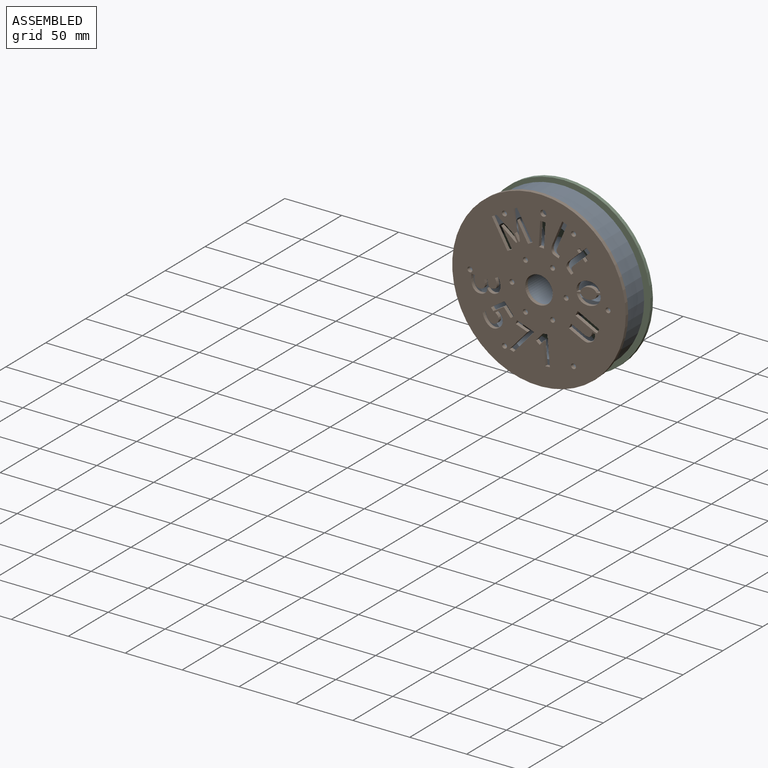
[diagram: assembled view]
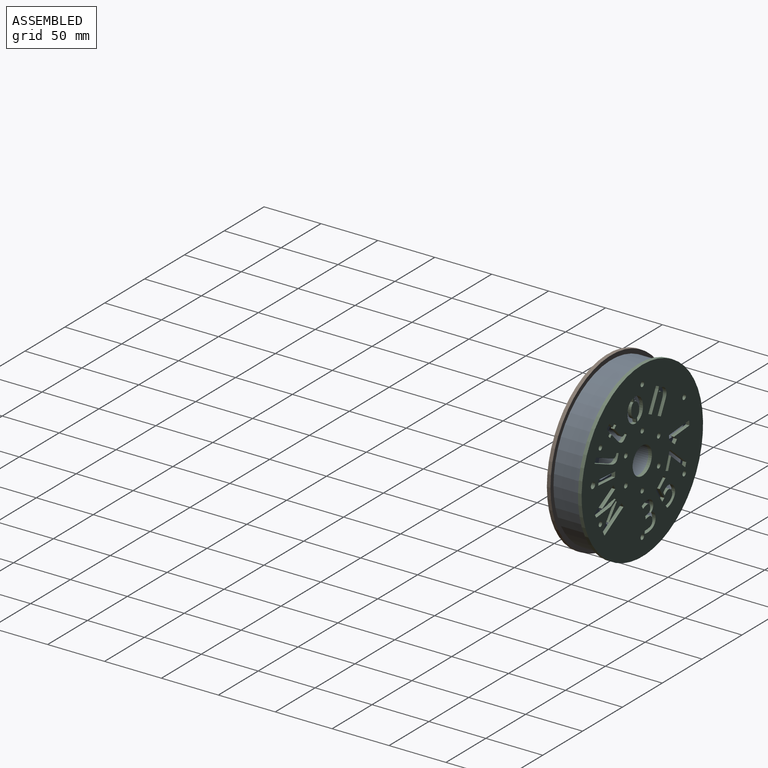
[diagram: assembled view, second angle]
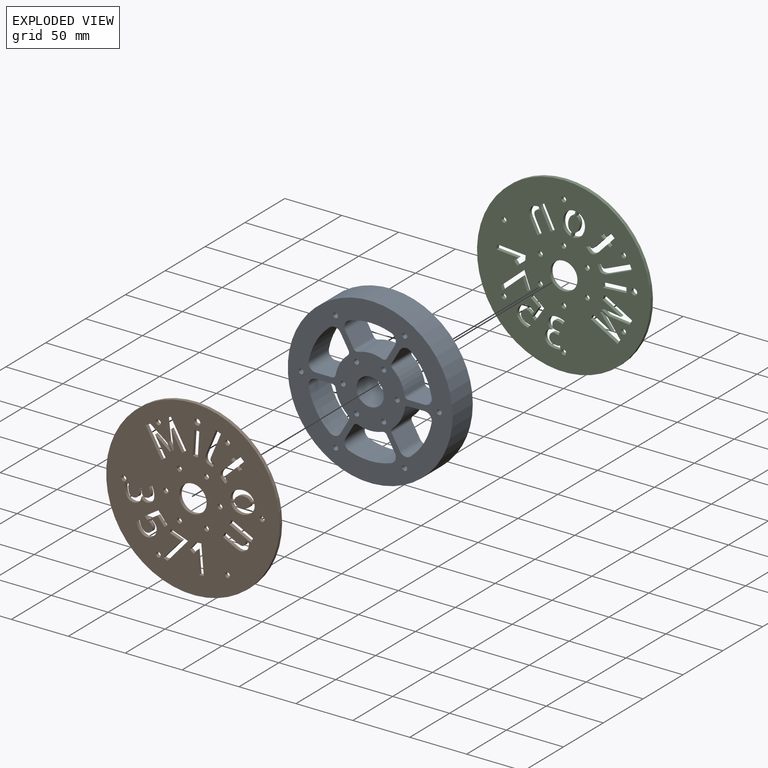
[diagram: exploded view]
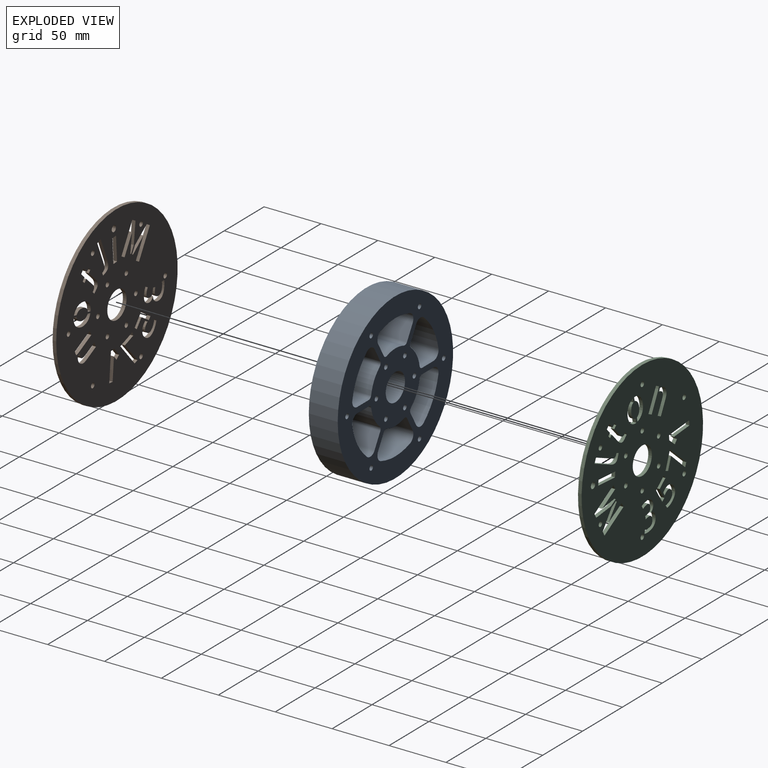
[diagram: exploded view, second angle]
ASSEMBLY  parts=3 mates=4
PART A: 76 faces, bbox 144.8x25.4x144.8 mm
  f0: cylinder r=32.14mm len=25.4mm, axis (0,1,0), area 278mm2, adj f1,f55,f74,f75
  f1: cylinder r=3.17mm len=25.4mm, axis (0,1,0), area 112.6mm2, adj f0,f2,f74,f75
  f2: plane 25.4x12.35mm, normal (0.87,0,-0.5), area 362.2mm2, adj f1,f3,f74,f75
  f3: cylinder r=6.35mm len=25.4mm, axis (0,1,0), area 284mm2, adj f2,f4,f74,f75
  f4: cylinder r=56.78mm len=25.4mm, axis (0,1,0), area 472.7mm2, adj f3,f5,f74,f75
  f5: cylinder r=56.78mm len=25.4mm, axis (0,1,0), area 472.7mm2, adj f4,f6,f74,f75
  f6: cylinder r=6.35mm len=25.4mm, axis (0,1,0), area 284mm2, adj f5,f7,f74,f75
  f7: plane 25.4x14.26mm, normal (0,0,1), area 362.2mm2, adj f6,f8,f74,f75
  f8: cylinder r=3.17mm len=25.4mm, axis (0,1,0), area 112.6mm2, adj f7,f55,f74,f75
  f9: cylinder r=32.14mm len=25.4mm, axis (0,1,0), area 278mm2, adj f10,f56,f74,f75
  f10: cylinder r=3.17mm len=25.4mm, axis (0,1,0), area 112.6mm2, adj f9,f11,f74,f75
  f11: plane 25.4x14.26mm, normal (0,0,-1), area 362.2mm2, adj f10,f12,f74,f75
  f12: cylinder r=6.35mm len=25.4mm, axis (0,1,0), area 284mm2, adj f11,f13,f74,f75
  f13: cylinder r=56.78mm len=25.4mm, axis (0,1,0), area 472.7mm2, adj f12,f14,f74,f75
  f14: cylinder r=56.78mm len=25.4mm, axis (0,1,0), area 472.7mm2, adj f13,f15,f74,f75
  f15: cylinder r=6.35mm len=25.4mm, axis (0,1,0), area 284mm2, adj f14,f16,f74,f75
  f16: plane 25.4x12.35mm, normal (0.87,0,0.5), area 362.2mm2, adj f15,f17,f74,f75
  f17: cylinder r=3.17mm len=25.4mm, axis (0,1,0), area 112.6mm2, adj f16,f56,f74,f75
  f18: cylinder r=32.14mm len=25.4mm, axis (0,1,0), area 278mm2, adj f19,f57,f74,f75
  f19: cylinder r=3.17mm len=25.4mm, axis (0,1,0), area 112.6mm2, adj f18,f20,f74,f75
  f20: plane 25.4x12.35mm, normal (-0.87,0,-0.5), area 362.2mm2, adj f19,f21,f74,f75
  f21: cylinder r=6.35mm len=25.4mm, axis (0,1,0), area 284mm2, adj f20,f22,f74,f75
  f22: cylinder r=56.78mm len=25.4mm, axis (0,1,0), area 472.7mm2, adj f21,f23,f74,f75
  f23: cylinder r=56.78mm len=25.4mm, axis (0,1,0), area 472.7mm2, adj f22,f24,f74,f75
  f24: cylinder r=6.35mm len=25.4mm, axis (0,1,0), area 284mm2, adj f23,f25,f74,f75
  f25: plane 25.4x12.35mm, normal (0.87,0,-0.5), area 362.2mm2, adj f24,f26,f74,f75
  f26: cylinder r=3.17mm len=25.4mm, axis (0,1,0), area 112.6mm2, adj f25,f57,f74,f75
  f27: cylinder r=32.14mm len=25.4mm, axis (0,1,0), area 278mm2, adj f28,f58,f74,f75
  f28: cylinder r=3.17mm len=25.4mm, axis (0,1,0), area 112.6mm2, adj f27,f29,f74,f75
  f29: plane 25.4x12.35mm, normal (-0.87,0,0.5), area 362.2mm2, adj f28,f30,f74,f75
  f30: cylinder r=6.35mm len=25.4mm, axis (0,1,0), area 284mm2, adj f29,f31,f74,f75
  f31: cylinder r=56.78mm len=25.4mm, axis (0,1,0), area 472.7mm2, adj f30,f32,f74,f75
  f32: cylinder r=56.78mm len=25.4mm, axis (0,1,0), area 472.7mm2, adj f31,f33,f74,f75
  f33: cylinder r=6.35mm len=25.4mm, axis (0,1,0), area 284mm2, adj f32,f34,f74,f75
  f34: plane 25.4x14.26mm, normal (0,0,-1), area 362.2mm2, adj f33,f35,f74,f75
  f35: cylinder r=3.17mm len=25.4mm, axis (0,1,0), area 112.6mm2, adj f34,f58,f74,f75
  f36: cylinder r=32.14mm len=25.4mm, axis (0,1,0), area 278mm2, adj f37,f59,f74,f75
  f37: cylinder r=3.17mm len=25.4mm, axis (0,1,0), area 112.6mm2, adj f36,f38,f74,f75
  f38: plane 25.4x14.26mm, normal (0,0,1), area 362.2mm2, adj f37,f39,f74,f75
  f39: cylinder r=6.35mm len=25.4mm, axis (0,1,0), area 284mm2, adj f38,f40,f74,f75
  f40: cylinder r=56.78mm len=25.4mm, axis (0,1,0), area 472.7mm2, adj f39,f41,f74,f75
  f41: cylinder r=56.78mm len=25.4mm, axis (0,1,0), area 472.7mm2, adj f40,f42,f74,f75
  f42: cylinder r=6.35mm len=25.4mm, axis (0,1,0), area 284mm2, adj f41,f43,f74,f75
  f43: plane 25.4x12.35mm, normal (-0.87,0,-0.5), area 362.2mm2, adj f42,f44,f74,f75
  f44: cylinder r=3.17mm len=25.4mm, axis (0,1,0), area 112.6mm2, adj f43,f59,f74,f75
  f45: cylinder r=6.35mm len=25.4mm, axis (0,1,0), area 284mm2, adj f46,f60,f74,f75
  f46: cylinder r=56.78mm len=25.4mm, axis (0,1,0), area 472.7mm2, adj f45,f47,f74,f75
  f47: cylinder r=56.78mm len=25.4mm, axis (0,1,0), area 472.7mm2, adj f46,f48,f74,f75
  f48: cylinder r=6.35mm len=25.4mm, axis (0,1,0), area 284mm2, adj f47,f49,f74,f75
  f49: plane 25.4x12.35mm, normal (-0.87,0,0.5), area 362.2mm2, adj f48,f50,f74,f75
  f50: cylinder r=3.17mm len=25.4mm, axis (0,1,0), area 112.6mm2, adj f49,f51,f74,f75
  f51: cylinder r=32.14mm len=25.4mm, axis (0,1,0), area 278mm2, adj f50,f52,f74,f75
  f52: cylinder r=32.14mm len=25.4mm, axis (0,1,0), area 278mm2, adj f51,f53,f74,f75
  f53: cylinder r=3.17mm len=25.4mm, axis (0,1,0), area 112.6mm2, adj f52,f60,f74,f75
  f54: cylinder r=12.06mm len=25.4mm, axis (0,1,0), area 1925.5mm2, adj f74,f75
  f55: cylinder r=32.14mm len=25.4mm, axis (0,1,0), area 278mm2, adj f0,f8,f74,f75
  f56: cylinder r=32.14mm len=25.4mm, axis (0,1,0), area 278mm2, adj f9,f17,f74,f75
  f57: cylinder r=32.14mm len=25.4mm, axis (0,1,0), area 278mm2, adj f18,f26,f74,f75
  f58: cylinder r=32.14mm len=25.4mm, axis (0,1,0), area 278mm2, adj f27,f35,f74,f75
  f59: cylinder r=32.14mm len=25.4mm, axis (0,1,0), area 278mm2, adj f36,f44,f74,f75
  f60: plane 25.4x12.35mm, normal (0.87,0,0.5), area 362.2mm2, adj f45,f53,f74,f75
  f61: cylinder r=2.16mm len=25.4mm, axis (0,1,0), area 344.6mm2, adj f74,f75
  f62: cylinder r=2.16mm len=25.4mm, axis (0,1,0), area 344.6mm2, adj f74,f75
  f63: cylinder r=2.16mm len=25.4mm, axis (0,1,0), area 344.6mm2, adj f74,f75
  f64: cylinder r=2.16mm len=25.4mm, axis (0,1,0), area 344.6mm2, adj f74,f75
  f65: cylinder r=2.16mm len=25.4mm, axis (0,1,0), area 344.6mm2, adj f74,f75
  f66: cylinder r=2.16mm len=25.4mm, axis (0,1,0), area 344.6mm2, adj f74,f75
  f67: cylinder r=2.16mm len=25.4mm, axis (0,1,0), area 344.6mm2, adj f74,f75
  f68: cylinder r=2.16mm len=25.4mm, axis (0,1,0), area 344.6mm2, adj f74,f75
  f69: cylinder r=2.16mm len=25.4mm, axis (0,1,0), area 344.6mm2, adj f74,f75
  f70: cylinder r=2.16mm len=25.4mm, axis (0,1,0), area 344.6mm2, adj f74,f75
  f71: cylinder r=2.16mm len=25.4mm, axis (0,1,0), area 344.6mm2, adj f74,f75
  f72: cylinder r=2.16mm len=25.4mm, axis (0,1,0), area 344.6mm2, adj f74,f75
  f73: cylinder r=72.39mm len=144.78mm, axis (0,1,0), area 11552.9mm2, adj f74,f75
  f74: plane 144.78x144.78mm, normal (0,-1,0), area 10230.7mm2, adj f0,f1,f2,f3,f4,f5,f6,f7
  f75: plane 144.78x144.78mm, normal (0,1,0), area 10230.7mm2, adj f0,f1,f2,f3,f4,f5,f6,f7
PART B: 240 faces, bbox 152.4x3.2x152.4 mm
  f0: plane 152.4x152.4mm, normal (0,1,0), area 15791.8mm2, adj f2,f3,f4,f5,f6,f7,f8,f9
  f1: plane 152.4x152.4mm, normal (0,-1,0), area 15791.8mm2, adj f2,f3,f4,f5,f6,f7,f8,f9
  f2: cylinder r=2.16mm len=4.32mm, axis (0,-1,0), area 43.1mm2, adj f0,f1
  f3: cylinder r=2.16mm len=4.32mm, axis (0,-1,0), area 43.1mm2, adj f0,f1
  f4: cylinder r=76.2mm len=152.4mm, axis (0,-1,0), area 1520.1mm2, adj f0,f1
  f5: cylinder r=12.06mm len=24.13mm, axis (0,-1,0), area 240.7mm2, adj f0,f1
  f6: cylinder r=2.16mm len=4.32mm, axis (0,-1,0), area 43.1mm2, adj f0,f1
  f7: cylinder r=2.16mm len=4.32mm, axis (0,-1,0), area 43.1mm2, adj f0,f1
  f8: cylinder r=2.16mm len=4.32mm, axis (0,-1,0), area 43.1mm2, adj f0,f1
  f9: cylinder r=2.16mm len=4.32mm, axis (0,-1,0), area 43.1mm2, adj f0,f1
  f10: cylinder r=2.16mm len=4.32mm, axis (0,-1,0), area 43.1mm2, adj f0,f1
  f11: cylinder r=2.16mm len=4.32mm, axis (0,-1,0), area 43.1mm2, adj f0,f1
  f12: cylinder r=2.16mm len=4.32mm, axis (0,-1,0), area 43.1mm2, adj f0,f1
  f13: cylinder r=2.16mm len=4.32mm, axis (0,-1,0), area 43.1mm2, adj f0,f1
  f14: cylinder r=2.16mm len=4.32mm, axis (0,-1,0), area 43.1mm2, adj f0,f1
  f15: cylinder r=2.16mm len=4.32mm, axis (0,-1,0), area 43.1mm2, adj f0,f1
  f16: plane 23.85x13.68mm, normal (0.87,0,0.5), area 87.3mm2, adj f0,f1,f17,f21
  f17: plane 3.95x3.18mm, normal (-0.5,0,0.87), area 14.5mm2, adj f0,f1,f16,f18
  f18: plane 16.41x9.41mm, normal (-0.87,0,-0.5), area 60.1mm2, adj f0,f1,f17,f19
  f19: plane 12.98x10.19mm, normal (0.62,0,0.79), area 52.4mm2, adj f0,f1,f18,f20
  f20: plane 3.18x1.04mm, normal (-0.5,0,0.87), area 3.8mm2, adj f0,f1,f19,f22
  f21: plane 3.95x3.18mm, normal (0.5,0,-0.87), area 14.5mm2, adj f0,f1,f16,f23
  f22: plane 5.99x3.44mm, normal (-0.87,0,-0.5), area 21.9mm2, adj f0,f1,f20,f23
  f23: plane 14.85x11.05mm, normal (-0.6,0,-0.8), area 58.8mm2, adj f0,f1,f21,f22
  f24: extruded ~3.18x1.95mm, area 6.7mm2, adj f0,f1,f25,f29
  f25: extruded ~3.18x1.85mm, area 6.7mm2, adj f0,f1,f24,f26
  f26: extruded ~3.18x1.91mm, area 6.6mm2, adj f0,f1,f25,f27
  f27: extruded ~3.18x1.85mm, area 6.7mm2, adj f0,f1,f26,f28
  f28: extruded ~3.18x1.91mm, area 6.6mm2, adj f0,f1,f27,f30
  f29: extruded ~3.18x1.83mm, area 6.7mm2, adj f0,f1,f24,f31
  f30: extruded ~3.18x1.83mm, area 6.7mm2, adj f0,f1,f28,f31
  f31: extruded ~3.18x1.95mm, area 6.7mm2, adj f0,f1,f29,f30
  f32: extruded ~3.18x1.22mm, area 4.6mm2, adj f0,f1,f33,f74
  f33: extruded ~3.18x1.3mm, area 5.4mm2, adj f0,f1,f32,f34
  f34: extruded ~3.18x1.68mm, area 5.8mm2, adj f0,f1,f33,f35
  f35: extruded ~3.18x1.98mm, area 6.3mm2, adj f0,f1,f34,f36
  f36: extruded ~3.18x3.01mm, area 10.4mm2, adj f0,f1,f35,f37
  f37: extruded ~3.18x2.08mm, area 9mm2, adj f0,f1,f36,f38
  f38: extruded ~3.18x2.71mm, area 9mm2, adj f0,f1,f37,f39
  f39: extruded ~3.18x3.09mm, area 9.8mm2, adj f0,f1,f38,f40
  f40: extruded ~3.43x3.18mm, area 11.3mm2, adj f0,f1,f39,f41
  f41: extruded ~3.18x1.93mm, area 6.7mm2, adj f0,f1,f40,f42
  f42: plane 3.18x2.85mm, normal (0.52,0,-0.86), area 10.6mm2, adj f0,f1,f41,f43
  f43: extruded ~3.18x1.33mm, area 4.8mm2, adj f0,f1,f42,f44
  f44: extruded ~3.18x2.44mm, area 8.1mm2, adj f0,f1,f43,f45
  f45: extruded ~3.18x2.51mm, area 8mm2, adj f0,f1,f44,f46
  f46: extruded ~3.18x1.5mm, area 5.3mm2, adj f0,f1,f45,f47
  f47: extruded ~3.18x1.15mm, area 4.5mm2, adj f0,f1,f46,f48
  f48: extruded ~3.18x1.27mm, area 4.2mm2, adj f0,f1,f47,f49
  f49: extruded ~3.18x2.42mm, area 7.8mm2, adj f0,f1,f48,f50
  f50: extruded ~3.18x1.35mm, area 5.3mm2, adj f0,f1,f49,f51
  f51: extruded ~3.18x1.38mm, area 4.8mm2, adj f0,f1,f50,f52
  f52: extruded ~3.18x1.5mm, area 4.9mm2, adj f0,f1,f51,f53
  f53: plane 3.18x2.31mm, normal (-0.98,0,-0.17), area 7.4mm2, adj f0,f1,f52,f54
  f54: plane 3.18x2.75mm, normal (0.19,0,-0.98), area 8.9mm2, adj f0,f1,f53,f55
  f55: plane 3.42x3.18mm, normal (0.98,0,0.17), area 11mm2, adj f0,f1,f54,f56
  f56: extruded ~3.31x3.18mm, area 11.1mm2, adj f0,f1,f55,f57
  f57: extruded ~3.18x2.9mm, area 10.7mm2, adj f0,f1,f56,f58
  f58: extruded ~3.41x3.18mm, area 11.2mm2, adj f0,f1,f57,f59
  f59: extruded ~3.27x3.18mm, area 12.4mm2, adj f0,f1,f58,f60
  f60: extruded ~3.18x2.53mm, area 8.1mm2, adj f0,f1,f59,f61
  f61: extruded ~3.18x1.48mm, area 4.7mm2, adj f0,f1,f60,f62
  f62: extruded ~3.18x0.85mm, area 2.8mm2, adj f0,f1,f61,f63
  f63: extruded ~3.18x0.65mm, area 2.2mm2, adj f0,f1,f62,f64
  f64: plane 3.18x3.08mm, normal (-0.13,0,-0.99), area 9.8mm2, adj f0,f1,f63,f65
  f65: extruded ~3.18x2.43mm, area 7.8mm2, adj f0,f1,f64,f66
  f66: extruded ~4.57x3.18mm, area 14.6mm2, adj f0,f1,f65,f67
  f67: extruded ~3.18x1.12mm, area 3.7mm2, adj f0,f1,f66,f68
  f68: extruded ~3.18x1.56mm, area 5.3mm2, adj f0,f1,f67,f69
  f69: extruded ~3.18x1.69mm, area 6.3mm2, adj f0,f1,f68,f70
  f70: extruded ~3.18x1.61mm, area 6.9mm2, adj f0,f1,f69,f71
  f71: extruded ~3.18x2.27mm, area 7.8mm2, adj f0,f1,f70,f72
  f72: extruded ~3.18x3.02mm, area 9.6mm2, adj f0,f1,f71,f73
  f73: extruded ~3.18x2.38mm, area 8.1mm2, adj f0,f1,f72,f75
  f74: extruded ~3.18x1.7mm, area 5.5mm2, adj f0,f1,f32,f76
  f75: extruded ~3.18x1.6mm, area 7mm2, adj f0,f1,f73,f76
  f76: extruded ~3.18x1.75mm, area 6.2mm2, adj f0,f1,f74,f75
  f77: extruded ~3.18x0.88mm, area 3.8mm2, adj f0,f1,f78,f100
  f78: extruded ~3.18x1.08mm, area 4.7mm2, adj f0,f1,f77,f79
  f79: plane 3.18x2.89mm, normal (0.54,0,-0.84), area 10.9mm2, adj f0,f1,f78,f80
  f80: extruded ~3.18x0.99mm, area 4mm2, adj f0,f1,f79,f81
  f81: extruded ~3.18x0.95mm, area 4.2mm2, adj f0,f1,f80,f82
  f82: extruded ~3.25x3.18mm, area 11.3mm2, adj f0,f1,f81,f83
  f83: extruded ~3.18x2.95mm, area 11mm2, adj f0,f1,f82,f84
  f84: extruded ~4.02x3.18mm, area 14mm2, adj f0,f1,f83,f85
  f85: extruded ~3.57x3.18mm, area 13.7mm2, adj f0,f1,f84,f86
  f86: extruded ~3.18x1.44mm, area 5.5mm2, adj f0,f1,f85,f87
  f87: extruded ~3.18x1.68mm, area 5.8mm2, adj f0,f1,f86,f88
  f88: extruded ~3.18x1.65mm, area 5.4mm2, adj f0,f1,f87,f89
  f89: extruded ~3.18x1.37mm, area 4.4mm2, adj f0,f1,f88,f90
  f90: plane 3.18x2.65mm, normal (0.64,0,-0.77), area 10.9mm2, adj f0,f1,f89,f91
  f91: extruded ~3.18x1.06mm, area 3.5mm2, adj f0,f1,f90,f92
  f92: extruded ~3.18x1.55mm, area 5.2mm2, adj f0,f1,f91,f93
  f93: extruded ~3.18x1.8mm, area 6.4mm2, adj f0,f1,f92,f94
  f94: extruded ~3.18x1.84mm, area 7.1mm2, adj f0,f1,f93,f95
  f95: extruded ~3.18x1.82mm, area 8.1mm2, adj f0,f1,f94,f96
  f96: extruded ~3.18x2.68mm, area 9.8mm2, adj f0,f1,f95,f97
  f97: extruded ~3.42x3.18mm, area 11mm2, adj f0,f1,f96,f98
  f98: extruded ~4.05x3.18mm, area 14.7mm2, adj f0,f1,f97,f99
  f99: extruded ~3.18x2.18mm, area 9.1mm2, adj f0,f1,f98,f101
  f100: extruded ~3.18x2.88mm, area 10.5mm2, adj f0,f1,f77,f102
  f101: extruded ~3.18x2.71mm, area 9.1mm2, adj f0,f1,f99,f102
  f102: extruded ~3.18x2.96mm, area 9.5mm2, adj f0,f1,f100,f101
  f103: plane 3.63x3.18mm, normal (0.34,0,0.94), area 12.3mm2, adj f0,f1,f104,f106
  f104: plane 20.52x17.91mm, normal (-0.75,0,0.66), area 86.5mm2, adj f0,f1,f103,f105
  f105: plane 15x5.43mm, normal (-0.34,0,-0.94), area 50.6mm2, adj f0,f1,f104,f107
  f106: plane 17.7x15.79mm, normal (0.75,0,-0.67), area 75.3mm2, adj f0,f1,f103,f108
  f107: plane 3.18x3.17mm, normal (0.94,0,-0.34), area 10.7mm2, adj f0,f1,f105,f108
  f108: plane 10.4x3.76mm, normal (0.34,0,0.94), area 35.1mm2, adj f0,f1,f106,f107
  f109: plane 25.3x3.18mm, normal (-1,0,-0.09), area 80.6mm2, adj f0,f1,f110,f113
  f110: plane 4.19x3.18mm, normal (0.09,0,-1), area 13.4mm2, adj f0,f1,f109,f111
  f111: plane 6.97x5.87mm, normal (0.76,0,-0.64), area 28.9mm2, adj f0,f1,f110,f112
  f112: plane 3.21x3.18mm, normal (0.64,0,0.77), area 13.3mm2, adj f0,f1,f111,f114
  f113: plane 4.19x3.18mm, normal (-0.09,0,1), area 13.4mm2, adj f0,f1,f109,f115
  f114: plane 3.76x3.18mm, normal (-0.77,0,0.64), area 15.6mm2, adj f0,f1,f112,f115
  f115: plane 19.39x3.18mm, normal (1,0,0.09), area 61.8mm2, adj f0,f1,f113,f114
  f116: plane 3.18x1.17mm, normal (-0.54,0,0.84), area 4.4mm2, adj f0,f1,f117,f128
  f117: plane 3.18x1.95mm, normal (-0.54,0,0.84), area 7.4mm2, adj f0,f1,f116,f118
  f118: extruded ~3.18x0.16mm, area 0.6mm2, adj f0,f1,f117,f119
  f119: extruded ~3.18x0.71mm, area 2.7mm2, adj f0,f1,f118,f120
  f120: extruded ~3.18x1.8mm, area 6.7mm2, adj f0,f1,f119,f121
  f121: extruded ~3.4x3.18mm, area 12.7mm2, adj f0,f1,f120,f122
  f122: plane 7.28x6.07mm, normal (0.77,0,0.64), area 30.1mm2, adj f0,f1,f121,f123
  f123: plane 3.18x2.59mm, normal (-0.64,0,0.77), area 10.7mm2, adj f0,f1,f122,f124
  f124: plane 9.66x8.05mm, normal (-0.77,0,-0.64), area 39.9mm2, adj f0,f1,f123,f125
  f125: extruded ~5.51x3.56mm, area 20.8mm2, adj f0,f1,f124,f126
  f126: extruded ~3.18x2.11mm, area 8mm2, adj f0,f1,f125,f127
  f127: extruded ~3.18x1.91mm, area 7.3mm2, adj f0,f1,f126,f129
  f128: plane 3.18x2.49mm, normal (0.77,0,0.64), area 10.3mm2, adj f0,f1,f116,f130
  f129: extruded ~3.18x1.5mm, area 5.8mm2, adj f0,f1,f127,f130
  f130: extruded ~3.18x0.84mm, area 3.3mm2, adj f0,f1,f128,f129
  f131: plane 3.6x3.18mm, normal (-0.89,0,0.45), area 12.8mm2, adj f0,f1,f132,f133
  f132: plane 18.79x9.47mm, normal (-0.45,0,-0.89), area 66.8mm2, adj f0,f1,f131,f134
  f133: plane 3.18x2.12mm, normal (0.24,0,0.97), area 6.9mm2, adj f0,f1,f131,f135
  f134: plane 4.03x3.18mm, normal (0.89,0,-0.45), area 14.3mm2, adj f0,f1,f132,f135
  f135: plane 16.9x8.51mm, normal (0.45,0,0.89), area 60.1mm2, adj f0,f1,f133,f134
  f136: extruded ~3.18x2.69mm, area 9.4mm2, adj f0,f1,f137,f151
  f137: extruded ~3.18x2.22mm, area 9.4mm2, adj f0,f1,f136,f138
  f138: extruded ~3.18x2.22mm, area 7.4mm2, adj f0,f1,f137,f139
  f139: extruded ~3.18x2.36mm, area 7.5mm2, adj f0,f1,f138,f140
  f140: plane 3.18x2.56mm, normal (-0.45,0,-0.89), area 9.1mm2, adj f0,f1,f139,f141
  f141: extruded ~3.18x1.76mm, area 5.7mm2, adj f0,f1,f140,f142
  f142: extruded ~3.18x1.33mm, area 4.5mm2, adj f0,f1,f141,f143
  f143: extruded ~3.18x1.54mm, area 6.6mm2, adj f0,f1,f142,f144
  f144: extruded ~3.18x1.75mm, area 5.8mm2, adj f0,f1,f143,f145
  f145: extruded ~3.18x2.07mm, area 6.8mm2, adj f0,f1,f144,f146
  f146: extruded ~3.18x2.22mm, area 7.7mm2, adj f0,f1,f145,f147
  f147: plane 10.23x5.15mm, normal (-0.45,0,-0.89), area 36.4mm2, adj f0,f1,f146,f148
  f148: plane 4.06x3.18mm, normal (0.89,0,-0.45), area 14.4mm2, adj f0,f1,f147,f149
  f149: plane 10.56x5.32mm, normal (0.45,0,0.89), area 37.5mm2, adj f0,f1,f148,f150
  f150: extruded ~3.18x1.65mm, area 5.8mm2, adj f0,f1,f149,f152
  f151: extruded ~3.18x1.76mm, area 5.7mm2, adj f0,f1,f136,f153
  f152: extruded ~3.18x1.74mm, area 5.9mm2, adj f0,f1,f150,f153
  f153: extruded ~3.18x1.8mm, area 5.8mm2, adj f0,f1,f151,f152
  f154: extruded ~3.83x3.18mm, area 13mm2, adj f0,f1,f155,f167
  f155: extruded ~3.18x2.9mm, area 12mm2, adj f0,f1,f154,f156
  f156: extruded ~3.2x3.18mm, area 11.6mm2, adj f0,f1,f155,f157
  f157: extruded ~3.83x3.18mm, area 12.3mm2, adj f0,f1,f156,f158
  f158: plane 3.51x3.18mm, normal (-0.2,0,0.98), area 11.4mm2, adj f0,f1,f157,f159
  f159: extruded ~3.18x1.86mm, area 6.1mm2, adj f0,f1,f158,f160
  f160: extruded ~3.18x1.58mm, area 6.6mm2, adj f0,f1,f159,f161
  f161: extruded ~3.18x2mm, area 7.5mm2, adj f0,f1,f160,f162
  f162: extruded ~3.18x2.5mm, area 8.3mm2, adj f0,f1,f161,f163
  f163: extruded ~4.8x3.18mm, area 15.4mm2, adj f0,f1,f162,f164
  f164: extruded ~3.18x2.89mm, area 12.4mm2, adj f0,f1,f163,f165
  f165: plane 3.41x3.18mm, normal (-0.2,0,0.98), area 11mm2, adj f0,f1,f164,f166
  f166: extruded ~3.34x3.18mm, area 12.1mm2, adj f0,f1,f165,f168
  f167: extruded ~4.07x3.18mm, area 13mm2, adj f0,f1,f154,f169
  f168: extruded ~3.18x2.77mm, area 11.5mm2, adj f0,f1,f166,f169
  f169: extruded ~3.56x3.18mm, area 11.9mm2, adj f0,f1,f167,f168
  f170: plane 3.44x3.18mm, normal (0.2,0,-0.98), area 11.1mm2, adj f0,f1,f171,f183
  f171: extruded ~3.18x1.88mm, area 6.2mm2, adj f0,f1,f170,f172
  f172: extruded ~3.18x1.63mm, area 6.7mm2, adj f0,f1,f171,f173
  f173: extruded ~3.18x1.98mm, area 7.5mm2, adj f0,f1,f172,f174
  f174: extruded ~3.18x2.49mm, area 8.3mm2, adj f0,f1,f173,f175
  f175: extruded ~4.8x3.18mm, area 15.5mm2, adj f0,f1,f174,f176
  f176: extruded ~3.18x2.91mm, area 12.6mm2, adj f0,f1,f175,f177
  f177: plane 3.51x3.18mm, normal (0.2,0,-0.98), area 11.4mm2, adj f0,f1,f176,f178
  f178: extruded ~3.38x3.18mm, area 12.1mm2, adj f0,f1,f177,f179
  f179: extruded ~3.18x2.78mm, area 11.6mm2, adj f0,f1,f178,f180
  f180: extruded ~3.58x3.18mm, area 12mm2, adj f0,f1,f179,f181
  f181: extruded ~4.1x3.18mm, area 13.1mm2, adj f0,f1,f180,f182
  f182: extruded ~3.86x3.18mm, area 13.1mm2, adj f0,f1,f181,f184
  f183: extruded ~3.85x3.18mm, area 12.4mm2, adj f0,f1,f170,f185
  f184: extruded ~3.18x2.92mm, area 12.1mm2, adj f0,f1,f182,f185
  f185: extruded ~3.22x3.18mm, area 11.7mm2, adj f0,f1,f183,f184
  f186: plane 20.82x8.72mm, normal (-0.92,0,0.39), area 71.7mm2, adj f0,f1,f187,f200
  f187: plane 4.2x3.18mm, normal (-0.39,0,-0.92), area 14.5mm2, adj f0,f1,f186,f188
  f188: plane 20.61x8.64mm, normal (0.92,0,-0.39), area 70.9mm2, adj f0,f1,f187,f189
  f189: extruded ~3.18x1.48mm, area 5mm2, adj f0,f1,f188,f190
  f190: extruded ~3.18x2.09mm, area 6.8mm2, adj f0,f1,f189,f191
  f191: extruded ~3.18x2.19mm, area 7mm2, adj f0,f1,f190,f192
  f192: extruded ~3.18x1.8mm, area 7.4mm2, adj f0,f1,f191,f193
  f193: extruded ~3.18x0.89mm, area 3.2mm2, adj f0,f1,f192,f194
  f194: extruded ~3.18x1.02mm, area 3.6mm2, adj f0,f1,f193,f195
  f195: extruded ~3.18x1.04mm, area 3.5mm2, adj f0,f1,f194,f196
  f196: extruded ~3.18x0.92mm, area 3.1mm2, adj f0,f1,f195,f197
  f197: extruded ~3.18x0.97mm, area 3.2mm2, adj f0,f1,f196,f198
  f198: plane 3.18x2.55mm, normal (-0.92,0,0.39), area 8.8mm2, adj f0,f1,f197,f199
  f199: extruded ~3.18x1.49mm, area 5.3mm2, adj f0,f1,f198,f201
  f200: extruded ~3.18x1.97mm, area 6.5mm2, adj f0,f1,f186,f202
  f201: extruded ~3.18x1.08mm, area 4.6mm2, adj f0,f1,f199,f202
  f202: extruded ~3.18x1.36mm, area 4.6mm2, adj f0,f1,f200,f201
  f203: plane 8.41x8mm, normal (-0.69,0,0.72), area 36.8mm2, adj f0,f1,f204,f225
  f204: plane 3.18x2.43mm, normal (0.72,0,0.69), area 10.7mm2, adj f0,f1,f203,f205
  f205: plane 3.18x2.21mm, normal (-0.69,0,0.72), area 9.7mm2, adj f0,f1,f204,f206
  f206: plane 3.18x2.43mm, normal (-0.72,0,-0.69), area 10.7mm2, adj f0,f1,f205,f207
  f207: plane 4.33x4.11mm, normal (-0.69,0,0.72), area 19mm2, adj f0,f1,f206,f208
  f208: plane 3.27x3.18mm, normal (-0.72,0,-0.69), area 14.3mm2, adj f0,f1,f207,f209
  f209: plane 4.33x4.11mm, normal (0.69,0,-0.72), area 19mm2, adj f0,f1,f208,f210
  f210: plane 3.18x2mm, normal (-0.72,0,-0.69), area 8.8mm2, adj f0,f1,f209,f211
  f211: plane 3.18x2.21mm, normal (0.69,0,-0.72), area 9.7mm2, adj f0,f1,f210,f212
  f212: plane 3.18x2mm, normal (0.72,0,0.69), area 8.8mm2, adj f0,f1,f211,f213
  f213: plane 8.22x7.82mm, normal (0.69,0,-0.72), area 36mm2, adj f0,f1,f212,f214
  f214: extruded ~3.18x1.15mm, area 5mm2, adj f0,f1,f213,f215
  f215: extruded ~3.18x1.75mm, area 6.7mm2, adj f0,f1,f214,f216
  f216: extruded ~3.18x2.11mm, area 7.1mm2, adj f0,f1,f215,f217
  f217: extruded ~3.18x2.19mm, area 7.4mm2, adj f0,f1,f216,f218
  f218: extruded ~3.18x0.79mm, area 3.2mm2, adj f0,f1,f217,f219
  f219: extruded ~3.18x0.85mm, area 3.6mm2, adj f0,f1,f218,f220
  f220: extruded ~3.18x0.81mm, area 3.6mm2, adj f0,f1,f219,f221
  f221: extruded ~3.18x0.72mm, area 3.1mm2, adj f0,f1,f220,f222
  f222: extruded ~3.18x0.75mm, area 3.1mm2, adj f0,f1,f221,f223
  f223: plane 3.18x2mm, normal (-0.69,0,0.72), area 8.8mm2, adj f0,f1,f222,f224
  f224: extruded ~3.18x1.24mm, area 5.2mm2, adj f0,f1,f223,f226
  f225: extruded ~3.18x1.61mm, area 6.4mm2, adj f0,f1,f203,f227
  f226: extruded ~3.18x1.32mm, area 4.7mm2, adj f0,f1,f224,f227
  f227: extruded ~3.18x1.43mm, area 4.6mm2, adj f0,f1,f225,f226
  f228: plane 21x3.18mm, normal (-1,0,0.06), area 66.8mm2, adj f0,f1,f229,f230
  f229: plane 4.55x3.18mm, normal (0.06,0,1), area 14.5mm2, adj f0,f1,f228,f231
  f230: plane 4.55x3.18mm, normal (-0.06,0,-1), area 14.5mm2, adj f0,f1,f228,f231
  f231: plane 21x3.18mm, normal (1,0,-0.06), area 66.8mm2, adj f0,f1,f229,f230
  f232: plane 18.47x3.18mm, normal (0.99,0,0.11), area 59mm2, adj f0,f1,f233,f237
  f233: plane 5.92x3.4mm, normal (0.87,0,0.5), area 21.7mm2, adj f0,f1,f232,f234
  f234: plane 3.18x1.07mm, normal (-0.5,0,0.87), area 3.9mm2, adj f0,f1,f233,f235
  f235: plane 16.33x3.18mm, normal (-0.99,0,-0.14), area 52.4mm2, adj f0,f1,f234,f236
  f236: plane 16.41x9.41mm, normal (0.87,0,0.5), area 60.1mm2, adj f0,f1,f235,f238
  f237: plane 3.95x3.18mm, normal (0.5,0,-0.87), area 14.4mm2, adj f0,f1,f232,f239
  f238: plane 3.95x3.18mm, normal (-0.5,0,0.87), area 14.4mm2, adj f0,f1,f236,f239
  f239: plane 23.85x13.68mm, normal (-0.87,0,-0.5), area 87.3mm2, adj f0,f1,f237,f238
PART C: same geometry as B
PLACE A t=(36.96,66.39,50.69)mm
PLACE B t=(36.96,37.82,50.69)mm
PLACE C rot(axis=(0.71,0,0.71),180deg) t=(38.71,69.57,51.34)mm
MATE parallel B.f4 <-> A.f32  axis (0,1,0) through (36.96,40.99,50.69)mm
MATE parallel A.f54 <-> B.f4  axis (0,-1,0) through (36.96,40.99,50.69)mm
MATE parallel C.f4 <-> A.f32  axis (0,-1,0) through (38.71,66.39,51.34)mm
MATE parallel A.f54 <-> C.f4  axis (0,1,0) through (36.96,66.39,50.69)mm
